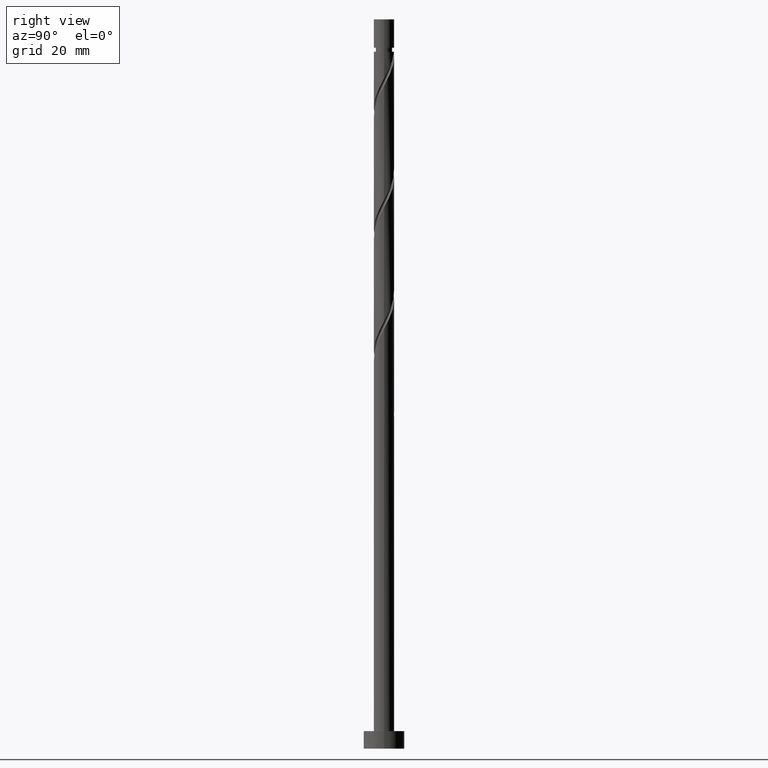
[diagram: clean part render]
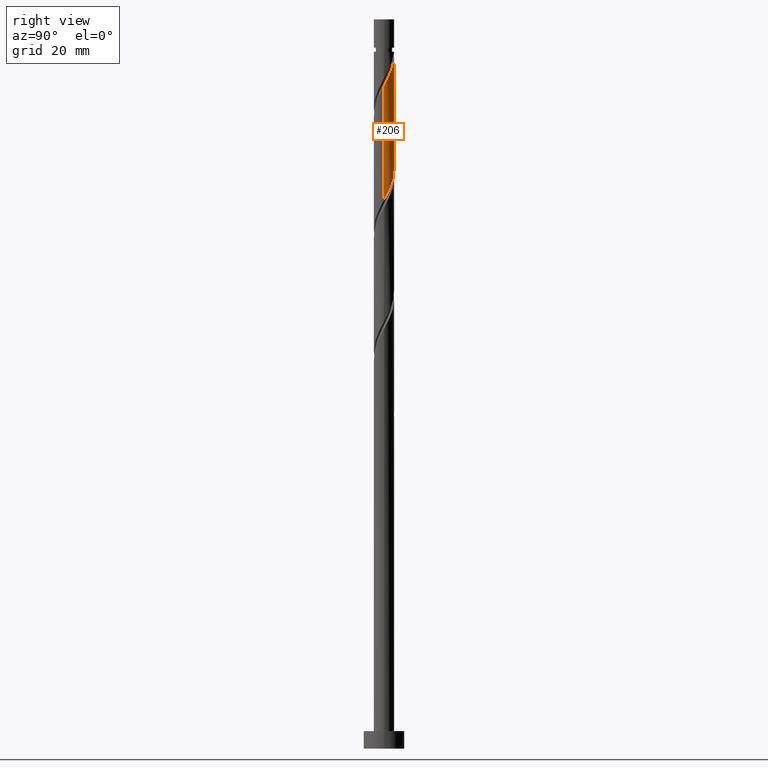
[diagram: same view with one face highlighted and labeled with its STEP entity id]
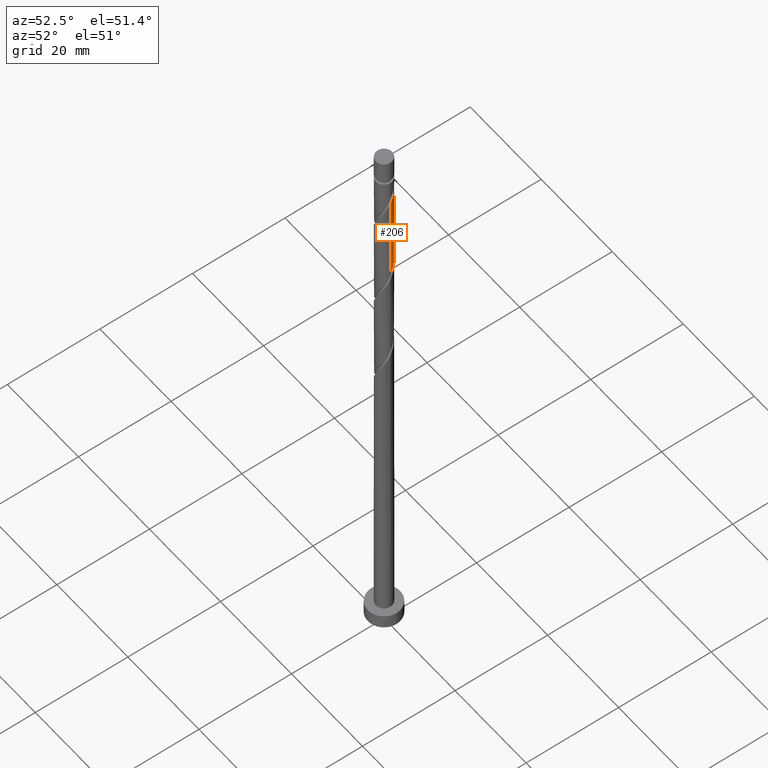
[diagram: same view with one face highlighted and labeled with its STEP entity id]
A machine part, right view. The second image highlights one B-rep face of the part: STEP entity #206.
A second angle (auxiliary view) of the same face is appended — the face is thin or edge-on in the first view.
In plain terms, the highlighted cylindrical surface (edge-blend (fillet) strip) has radius 1.75 mm, axis along (-0, -0, -1).
Its self-contained STEP definition (entity closure, byte-faithful):
#3 = CARTESIAN_POINT ( 'NONE',  ( 1.750000000000003109, 4.347999807129640933E-16, 113.5745920383712360 ) ) ;
#9 = AXIS2_PLACEMENT_3D ( 'NONE', #253, #1073, #1217 ) ;
#47 = CARTESIAN_POINT ( 'NONE',  ( -0.4741420785523612347, 1.707194785046613816, 100.1768944798414793 ) ) ;
#64 = CARTESIAN_POINT ( 'NONE',  ( 0.8611653953452581556, 1.523448115906756328, 97.57272781317480792 ) ) ;
#71 = CARTESIAN_POINT ( 'NONE',  ( 1.750000000000000000, 2.578813678711391292E-15, 94.07086358797840830 ) ) ;
#103 = AXIS2_PLACEMENT_3D ( 'NONE', #1031, #186, #549 ) ;
#128 = VERTEX_POINT ( 'NONE', #3 ) ;
#170 = CARTESIAN_POINT ( 'NONE',  ( 0.1987628953608130966, 1.738675734985623000, 118.4060611465081507 ) ) ;
#177 = CARTESIAN_POINT ( 'NONE',  ( 1.750000000000000222, 0.09970404053125617172, 94.26037467718569474 ) ) ;
#186 = DIRECTION ( 'NONE',  ( -0.000000000000000000, -0.000000000000000000, -1.000000000000000000 ) ) ;
#191 = CARTESIAN_POINT ( 'NONE',  ( -0.7263150966485011351, 1.592157774964679806, 100.6977278131747937 ) ) ;
#198 = CARTESIAN_POINT ( 'NONE',  ( 0.6198749181438975020, 1.659843315075372860, 98.09356114650813652 ) ) ;
#204 = VECTOR ( 'NONE', #1139, 1000.000000000000000 ) ;
#206 = ADVANCED_FACE ( 'NONE', ( #967 ), #1448, .T. ) ;
#207 =( BOUNDED_CURVE ( )  B_SPLINE_CURVE ( 2, ( #1131, #1275, #667, #1282, #783, #1382, #661, #1489, #191, #47, #789, #1499, #532, #198, #64, #1504, #762, #1002, #309, #424, #418, #177, #71 ),
 .UNSPECIFIED., .F., .T. ) 
 B_SPLINE_CURVE_WITH_KNOTS ( ( 3, 2, 2, 2, 2, 2, 2, 2, 2, 2, 2, 3 ),
 ( 0.4295322023138553602, 0.4375000000000000000, 0.4500000000000000111, 0.4625000000000000222, 0.4749999999999999778, 0.4874999999999999889, 0.5000000000000000000, 0.5124999999999999556, 0.5250000000000000222, 0.5374999999999999778, 0.5500000000000000444, 0.5545322023138552492 ),
 .UNSPECIFIED. ) 
 CURVE ( )  GEOMETRIC_REPRESENTATION_ITEM ( )  RATIONAL_B_SPLINE_CURVE ( ( 0.9039174447099372900, 0.9019565955404669211, 0.9090909090909150558, 0.8978984914501311199, 0.9090909090909150558, 0.8978984914501311199, 0.9090909090909150558, 0.8978984914501311199, 0.9090909090909150558, 0.8978984914501311199, 0.9090909090909150558, 0.8978984914501311199, 0.9090909090909150558, 0.8978984914501311199, 0.9090909090909150558, 0.8978984914501311199, 0.9090909090909150558, 0.8978984914501311199, 0.9090909090909150558, 0.8978984914501311199, 0.9090909090909150558, 0.9050328050005793656, 0.9039174447099372900 ) ) 
 REPRESENTATION_ITEM ( '' )  );
#253 = CARTESIAN_POINT ( 'NONE',  ( 0.000000000000000000, 0.000000000000000000, 125.0000000000000000 ) ) ;
#266 = ORIENTED_EDGE ( 'NONE', *, *, #1122, .F. ) ;
#283 = CARTESIAN_POINT ( 'NONE',  ( 1.750000000000000000, 2.143131898507867804E-16, 125.0000000000000000 ) ) ;
#294 = CARTESIAN_POINT ( 'NONE',  ( -1.750000000000000000, 0.000000000000000000, 125.0000000000000000 ) ) ;
#302 = CARTESIAN_POINT ( 'NONE',  ( -0.3482456029873290393, 1.715000000000001634, 119.4477278131748363 ) ) ;
#309 = CARTESIAN_POINT ( 'NONE',  ( 1.592157774964679806, 0.7263150966485003579, 95.48939447984147932 ) ) ;
#404 = VERTEX_POINT ( 'NONE', #1094 ) ;
#418 = CARTESIAN_POINT ( 'NONE',  ( 1.738675734985620558, 0.1987628953608115701, 94.44772781317482213 ) ) ;
#424 = CARTESIAN_POINT ( 'NONE',  ( 1.707194785046614260, 0.4741420785523609571, 94.96856114650816494 ) ) ;
#440 = CARTESIAN_POINT ( 'NONE',  ( -0.07661628783073667903, 1.770156684924629964, 118.9268944798415077 ) ) ;
#486 = CIRCLE ( 'NONE', #103, 1.749999999999997558 ) ;
#488 = ORIENTED_EDGE ( 'NONE', *, *, #1179, .F. ) ;
#532 = CARTESIAN_POINT ( 'NONE',  ( 0.3482456029873175485, 1.715000000000000080, 98.61439447984147932 ) ) ;
#536 = VERTEX_POINT ( 'NONE', #772 ) ;
#541 = CARTESIAN_POINT ( 'NONE',  ( 1.387052916738143127, 1.102455872546620474, 115.8018944798414935 ) ) ;
#549 = DIRECTION ( 'NONE',  ( -1.000000000000000000, 0.000000000000000000, 0.000000000000000000 ) ) ;
#556 = CARTESIAN_POINT ( 'NONE',  ( 0.7263150966485028004, 1.592157774964681805, 117.3643944798414793 ) ) ;
#643 = ORIENTED_EDGE ( 'NONE', *, *, #1209, .F. ) ;
#652 = LINE ( 'NONE', #294, #204 ) ;
#661 = CARTESIAN_POINT ( 'NONE',  ( -1.182770515741390360, 1.289788318714682136, 101.7393944798414651 ) ) ;
#667 = CARTESIAN_POINT ( 'NONE',  ( -1.715000000000000080, 0.3482456029873171599, 103.8227278131748079 ) ) ;
#696 = CARTESIAN_POINT ( 'NONE',  ( -1.749999999999997558, 0.000000000000000000, 119.4477278131748079 ) ) ;
#735 = DIRECTION ( 'NONE',  ( -0.000000000000000000, -0.000000000000000000, -1.000000000000000000 ) ) ;
#745 = EDGE_LOOP ( 'NONE', ( #266, #1371, #488, #643, #875 ) ) ;
#762 = CARTESIAN_POINT ( 'NONE',  ( 1.289788318714682358, 1.182770515741389916, 96.53106114650810810 ) ) ;
#770 = CARTESIAN_POINT ( 'NONE',  ( 0.4741420785523627335, 1.707194785046616925, 117.8852278131748363 ) ) ;
#772 = CARTESIAN_POINT ( 'NONE',  ( 1.750000000000000000, 2.578813678711391292E-15, 94.07086358797840830 ) ) ;
#783 = CARTESIAN_POINT ( 'NONE',  ( -1.523448115906756328, 0.8611653953452578225, 102.7810611465081507 ) ) ;
#789 = CARTESIAN_POINT ( 'NONE',  ( -0.1987628953608119586, 1.738675734985620558, 99.65606114650815073 ) ) ;
#797 =( BOUNDED_CURVE ( )  B_SPLINE_CURVE ( 2, ( #886, #1389, #1511, #1366, #1397, #541, #901, #1267, #556, #770, #170, #440, #1375 ),
 .UNSPECIFIED., .F., .T. ) 
 B_SPLINE_CURVE_WITH_KNOTS ( ( 3, 2, 2, 2, 2, 2, 3 ),
 ( 0.6795322023138551382, 0.6875000000000000000, 0.6999999999999999556, 0.7125000000000000222, 0.7249999999999999778, 0.7375000000000000444, 0.7500000000000000000 ),
 .UNSPECIFIED. ) 
 CURVE ( )  GEOMETRIC_REPRESENTATION_ITEM ( )  RATIONAL_B_SPLINE_CURVE ( ( 0.9039174447099438403, 0.9019565955404731383, 0.9090909090909216062, 0.8978984914501375592, 0.9090909090909216062, 0.8978984914501375592, 0.9090909090909216062, 0.8978984914501375592, 0.9090909090909216062, 0.8978984914501375592, 0.9090909090909216062, 0.8978984914501375592, 0.9090909090909216062 ) ) 
 REPRESENTATION_ITEM ( '' )  );
#875 = ORIENTED_EDGE ( 'NONE', *, *, #1159, .T. ) ;
#886 = CARTESIAN_POINT ( 'NONE',  ( 1.750000000000003109, 4.347999807129640933E-16, 113.5745920383712360 ) ) ;
#901 = CARTESIAN_POINT ( 'NONE',  ( 1.182770515741392581, 1.289788318714684356, 116.3227278131747937 ) ) ;
#953 = VECTOR ( 'NONE', #735, 1000.000000000000000 ) ;
#967 = FACE_OUTER_BOUND ( 'NONE', #745, .T. ) ;
#1002 = CARTESIAN_POINT ( 'NONE',  ( 1.477120764882745352, 0.9784881147446405913, 96.01022781317479371 ) ) ;
#1031 = CARTESIAN_POINT ( 'NONE',  ( 0.000000000000000000, 0.000000000000000000, 119.4477278131748079 ) ) ;
#1073 = DIRECTION ( 'NONE',  ( -0.000000000000000000, -0.000000000000000000, -1.000000000000000000 ) ) ;
#1094 = CARTESIAN_POINT ( 'NONE',  ( -1.750000000000000000, 3.605841219360987181E-15, 104.4875302546450655 ) ) ;
#1122 = EDGE_CURVE ( 'NONE', #128, #1173, #797, .T. ) ;
#1131 = CARTESIAN_POINT ( 'NONE',  ( -1.750000000000000000, 3.605841219360987181E-15, 104.4875302546450655 ) ) ;
#1139 = DIRECTION ( 'NONE',  ( -0.000000000000000000, -0.000000000000000000, -1.000000000000000000 ) ) ;
#1159 = EDGE_CURVE ( 'NONE', #1249, #1173, #486, .T. ) ;
#1173 = VERTEX_POINT ( 'NONE', #302 ) ;
#1179 = EDGE_CURVE ( 'NONE', #404, #536, #207, .T. ) ;
#1209 = EDGE_CURVE ( 'NONE', #1249, #404, #652, .T. ) ;
#1217 = DIRECTION ( 'NONE',  ( -1.000000000000000000, 0.000000000000000000, 0.000000000000000000 ) ) ;
#1249 = VERTEX_POINT ( 'NONE', #696 ) ;
#1256 = LINE ( 'NONE', #283, #953 ) ;
#1267 = CARTESIAN_POINT ( 'NONE',  ( 0.9784881147446430338, 1.477120764882747128, 116.8435611465081649 ) ) ;
#1275 = CARTESIAN_POINT ( 'NONE',  ( -1.749999999999999334, 0.1758816176703663914, 104.1532256792372380 ) ) ;
#1282 = CARTESIAN_POINT ( 'NONE',  ( -1.659843315075372860, 0.6198749181438970579, 103.3018944798414793 ) ) ;
#1348 = EDGE_CURVE ( 'NONE', #128, #536, #1256, .T. ) ;
#1366 = CARTESIAN_POINT ( 'NONE',  ( 1.659843315075376635, 0.6198749181438973910, 114.7602278131748221 ) ) ;
#1371 = ORIENTED_EDGE ( 'NONE', *, *, #1348, .T. ) ;
#1375 = CARTESIAN_POINT ( 'NONE',  ( -0.3482456029873290948, 1.715000000000001634, 119.4477278131748363 ) ) ;
#1382 = CARTESIAN_POINT ( 'NONE',  ( -1.387052916738139796, 1.102455872546618476, 102.2602278131748221 ) ) ;
#1389 = CARTESIAN_POINT ( 'NONE',  ( 1.750000000000003553, 0.1758816176703603407, 113.9088966137790351 ) ) ;
#1397 = CARTESIAN_POINT ( 'NONE',  ( 1.523448115906759437, 0.8611653953452583776, 115.2810611465081507 ) ) ;
#1448 = CYLINDRICAL_SURFACE ( 'NONE', #9, 1.750000000000000000 ) ;
#1489 = CARTESIAN_POINT ( 'NONE',  ( -0.9784881147446411465, 1.477120764882745352, 101.2185611465081365 ) ) ;
#1499 = CARTESIAN_POINT ( 'NONE',  ( 0.07661628783073730353, 1.770156684924627077, 99.13522781317480792 ) ) ;
#1504 = CARTESIAN_POINT ( 'NONE',  ( 1.102455872546618920, 1.387052916738139796, 97.05189447984147932 ) ) ;
#1511 = CARTESIAN_POINT ( 'NONE',  ( 1.715000000000003411, 0.3482456029873171044, 114.2393944798414651 ) ) ;